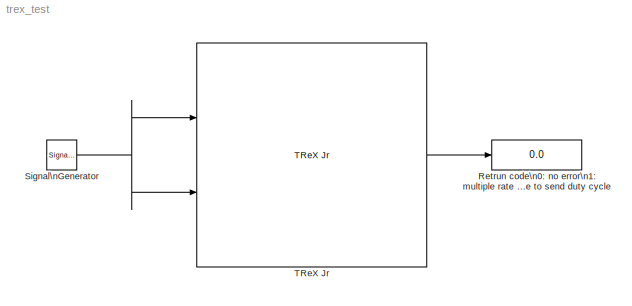
MODEL trex_test
KIND model
BLOCK [Display] Retrun code\n0: no error\n1: multiple rate not allowed\n2: max sampling rate exceeded\n3: unable to open serial link port\n 4: unable to send duty cycle
  Decimation = 1
  Ports = [1]
  SID = 5
BLOCK [SignalGenerator] Signal\nGenerator
  Amplitude = 127
  Ports = [0, 1]
  SID = 4
  WaveForm = square
BLOCK [Reference] TReX Jr  REF=rpi_blkst/TReX Jr  (lib defined in mdl_5f9edbe601a8, slx_830431f926a7)
  Ports = [2, 1]
  SID = 3
  SourceBlock = rpi_blkst/TReX Jr
  SourceProductName = RPI Blockset
  SourceType = TReX Jr
  rpi_mask_Ts = 0.01
  rpi_mask_trex_id = 0
  rpi_mask_trex_port = 0
NET Signal\nGenerator:1 -> TReX Jr:1, TReX Jr:2
LINE TReX Jr:1 -> Retrun code\n0: no error\n1: multiple rate not allowed\n2: max sampling rate exceeded\n3: unable to open serial link port\n 4: unable to send duty cycle:1
note: NET lines group one-source signal fan-out (src -> all destinations, sorted); 1:1 wires keep LINE
